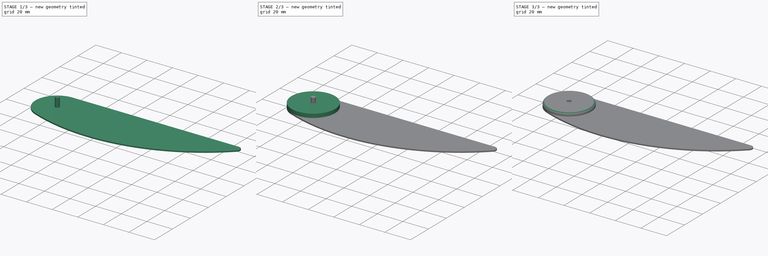
[diagram: build sequence overview — one tinted view per stage of 3, left to right]
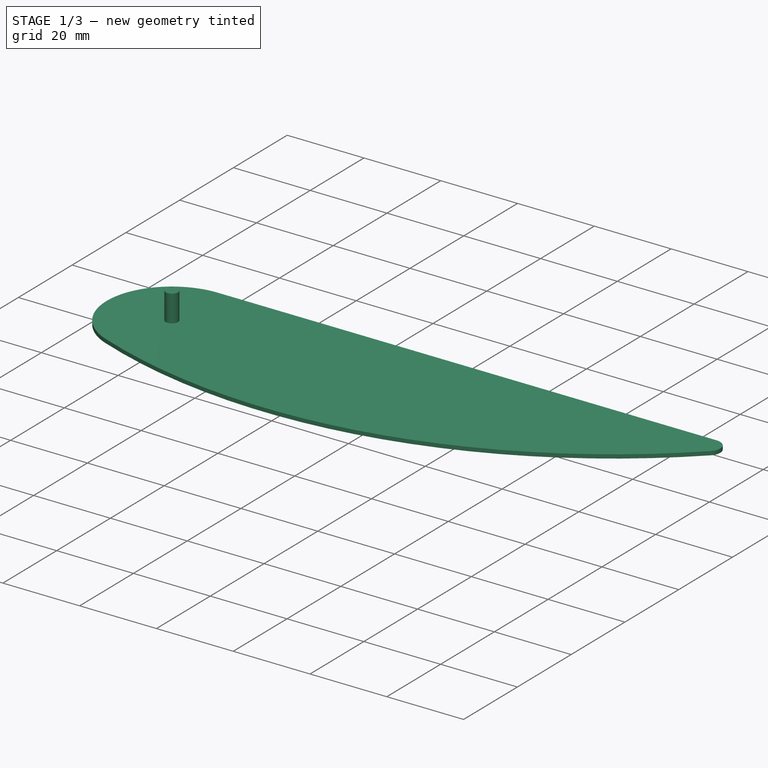
[diagram: stage 1 of 3 — iso view after this stage's code; geometry added in this stage tinted green]
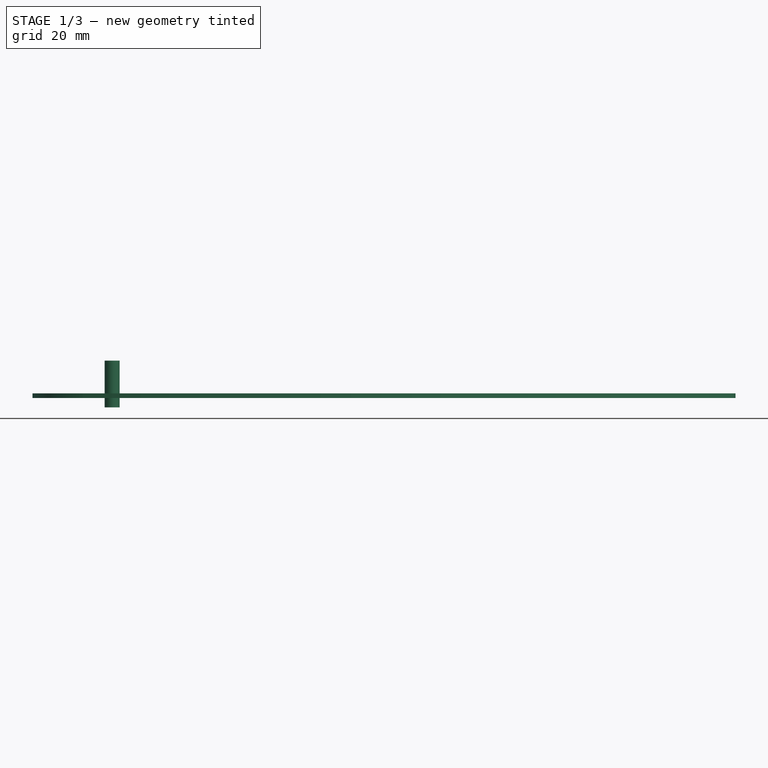
[diagram: stage 1 of 3 — front view after this stage's code; geometry added in this stage tinted green]
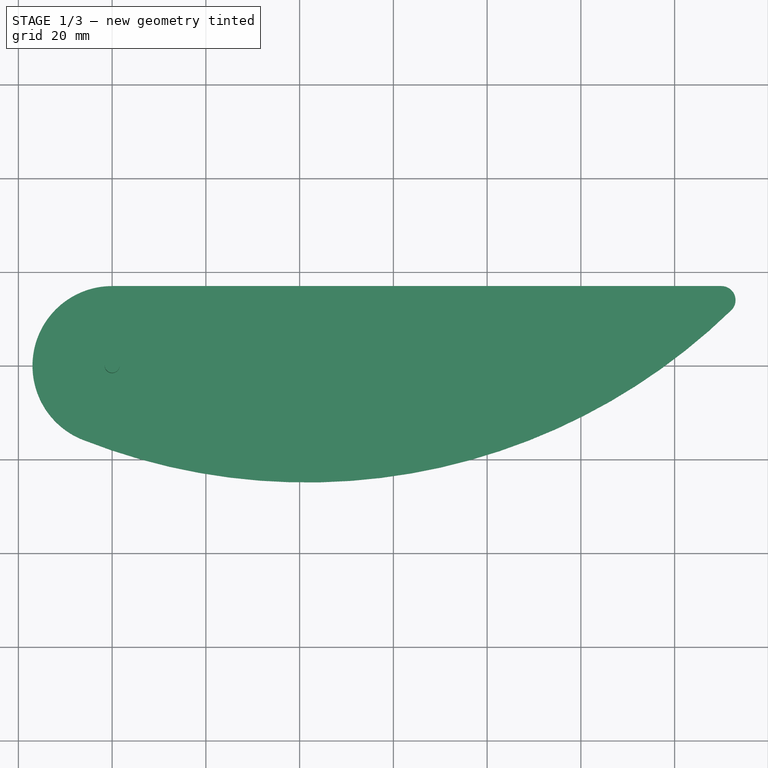
[diagram: stage 1 of 3 — top view after this stage's code; geometry added in this stage tinted green]
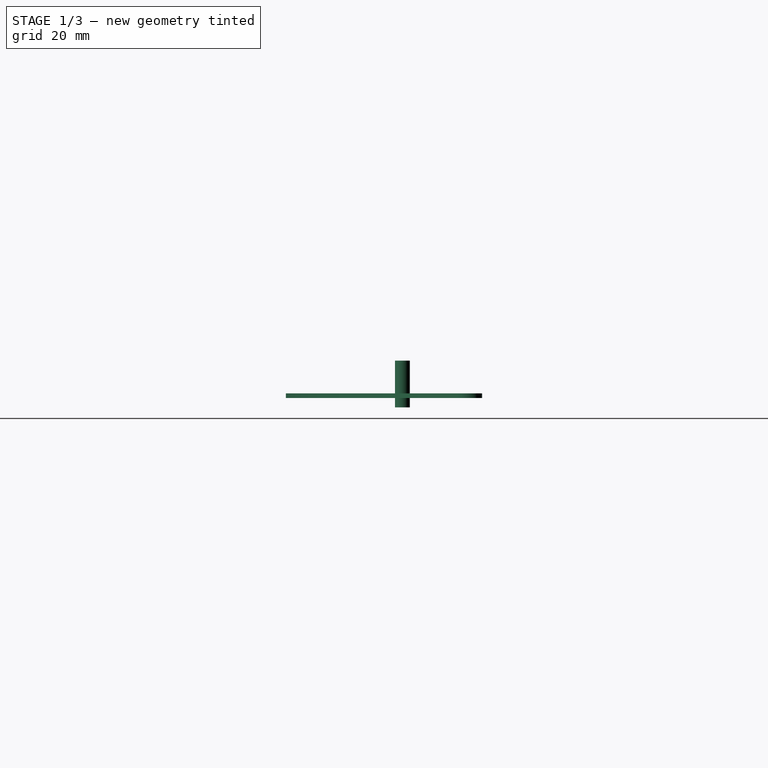
[diagram: stage 1 of 3 — right view after this stage's code; geometry added in this stage tinted green]
FCSTD DOCUMENT  (FreeCAD 0.17R13541 (Git))
Label: Guillotina
License: CreativeCommons Attribution
LicenseURL: http://creativecommons.org/licenses/by/4.0/
objects: Part::Feature×3, Sketcher::SketchObject×2, PartDesign::Pad×2, Part::Cut×2, PartDesign::Body×1, Part::Fillet×1, Part::Cylinder×1, App::DocumentObjectGroup×1
note: 14 computed .brp shape members not serialized (recipe doc carries the construction recipe); baked Part::Feature solids carry a one-line shape summary decoded from their .brp

FEATURE [Sketcher::SketchObject] Sketch  label="Sketch cuchillo"
  MapMode = 5
  Support = -> [XY_Plane]
  sketch-geometry (4):
    g0: ArcOfCircle CenterX=0 CenterY=0 CenterZ=0 NormalX=0 NormalY=0 NormalZ=1 AngleXU=0 Radius=17 StartAngle=1.5708 EndAngle=4.33621
    g1: ArcOfCircle CenterX=130 CenterY=14 CenterZ=0 NormalX=0 NormalY=0 NormalZ=1 AngleXU=0 Radius=3 StartAngle=5.48325 EndAngle=7.85398
    g2: LineSegment StartX=0 StartY=17 StartZ=0 EndX=130 EndY=17 EndZ=0
    g3: ArcOfCircle CenterX=41.5125 CenterY=105.099 CenterZ=0 NormalX=0 NormalY=0 NormalZ=1 AngleXU=0 Radius=130 StartAngle=4.33621 EndAngle=5.48325
  constraints (10):
    c: Coincident(g0,g-1)
    c: Horizontal(g2)
    c: Tangent(g0,g2) = 1.5708
    c: Tangent(g1,g2) = 1.5708
    c: DistanceX(g2,g2) = 130
    c: Radius(g1) = 3
    c: Tangent(g3,g0) = -1.5708
    c: Tangent(g3,g1) = -1.5708
    c: Radius(g0) = 17
    c: Radius(g3) = 130
FEATURE [PartDesign::Pad] Pad  label="Pad cuchillo"
  Length = 1
  Length2 = 100
  Profile = -> Sketch
  Type = 0
FEATURE [Part::Feature] Fillet001  label="Soporte 4 palas servo HD1160A"
  shape: bbox 26 x 26 x 5.52 mm, 39 faces (baked)
FEATURE [Part::Cylinder] Cylinder  label="Hueco para tornillo servo"
  Angle = 360
  AttacherType = Attacher::AttachEngine3D
  Height = 10
  Placement = pos=(0,0,-2) rot=(0,0,1;0rad)
  Radius = 1.6
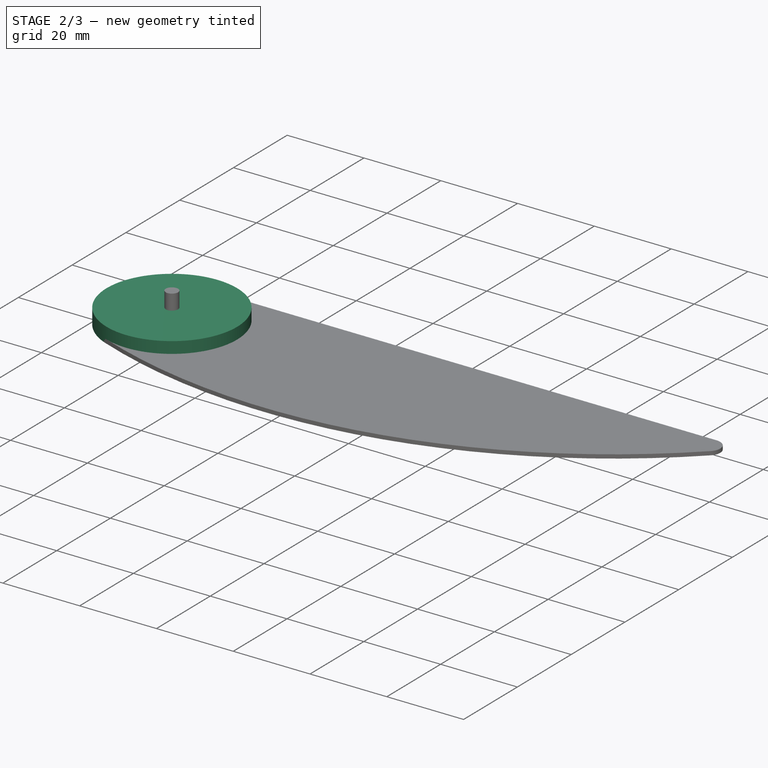
[diagram: stage 2 of 3 — iso view after this stage's code; geometry added in this stage tinted green]
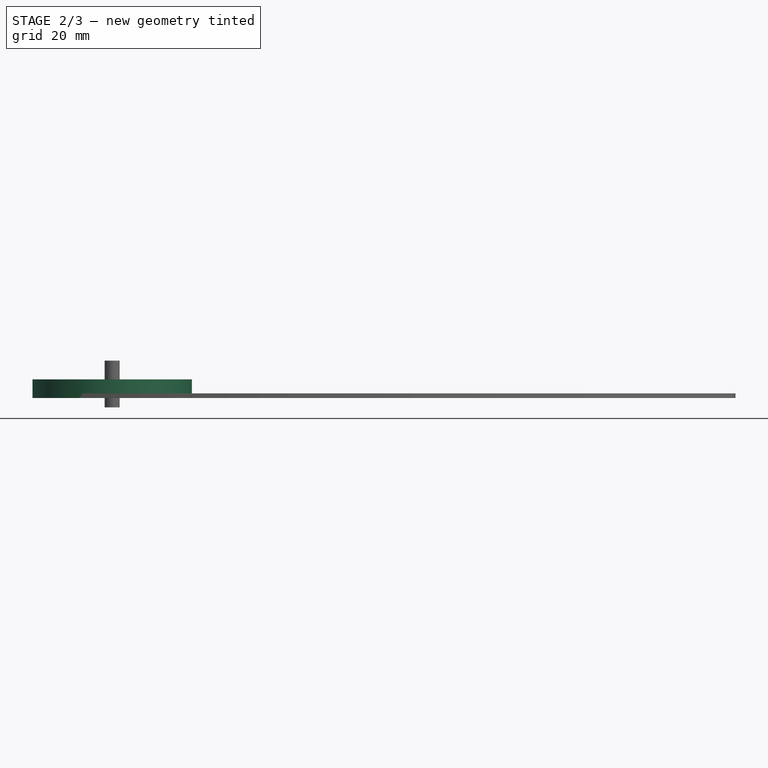
[diagram: stage 2 of 3 — front view after this stage's code; geometry added in this stage tinted green]
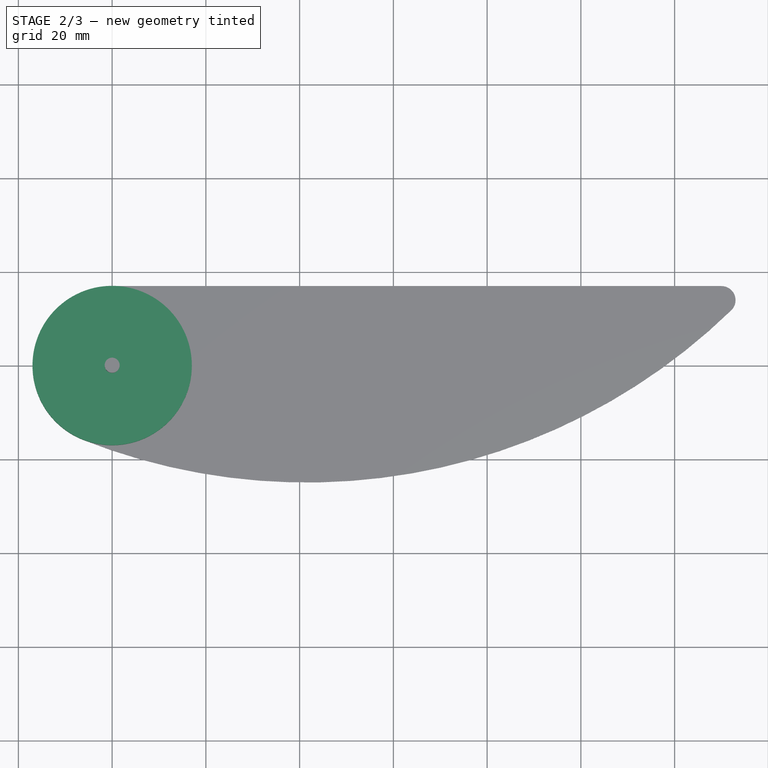
[diagram: stage 2 of 3 — top view after this stage's code; geometry added in this stage tinted green]
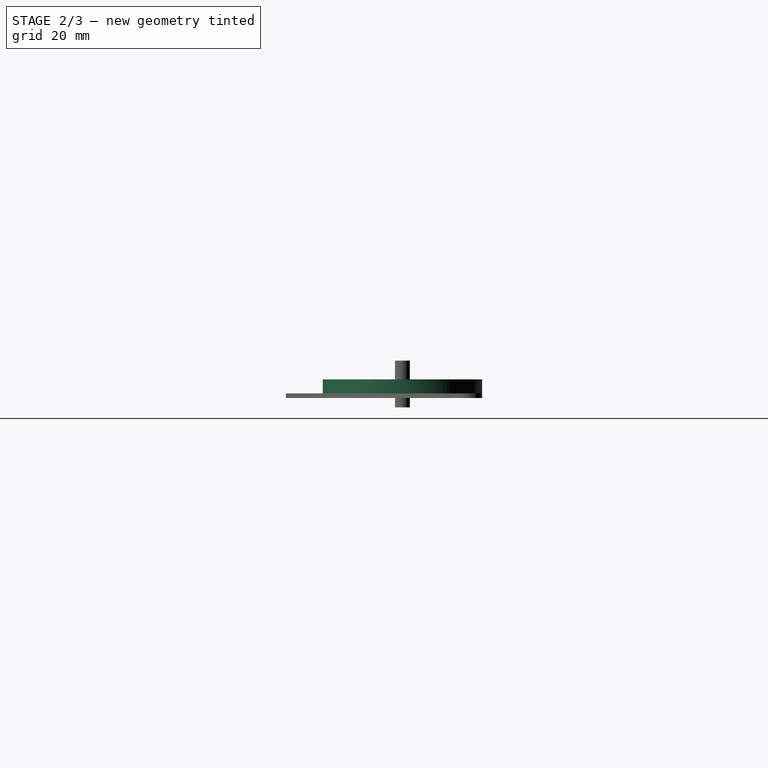
[diagram: stage 2 of 3 — right view after this stage's code; geometry added in this stage tinted green]
FEATURE [Sketcher::SketchObject] Sketch001  label="Sketch soporte servo"
  MapMode = 5
  Placement = pos=(0,0,1) rot=(0,0,1;0rad)
  Support = -> [Pad]
  sketch-geometry (1):
    g0: Circle CenterX=0 CenterY=0 CenterZ=0 NormalX=0 NormalY=0 NormalZ=1 AngleXU=0 Radius=17
  constraints (2):
    c: Coincident(g0,g-1)
    c: Radius(g0) = 17
FEATURE [PartDesign::Pad] Pad001  label="Pad empuñadura"
  BaseFeature = -> Pad
  Length = 3
  Length2 = 100
  Profile = -> Sketch001
  Type = 0
FEATURE [PartDesign::Body] Body  label="Body 3D"
  Group = -> [Sketch,Pad,Sketch001,Pad001]
  Origin = -> Origin
  Tip = -> Pad001
FEATURE [Part::Feature] Fusion003001  label="Fusion soporte 4 palas para hacer huecos"
  shape: bbox 26.5 x 26.5 x 2.52 mm, 20 faces (baked)
FEATURE [Part::Cut] Cut  label="Recorte cuchillo con hueco para soporte 4 palas"
  Base = -> Pad001
  Refine = true
  Tool = -> Fusion003001
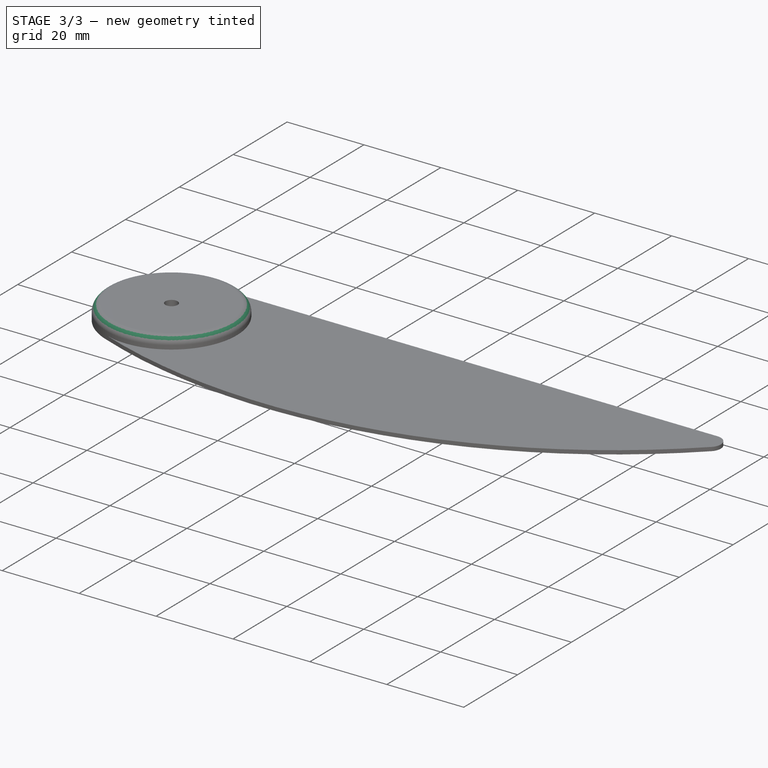
[diagram: stage 3 of 3 — iso view after this stage's code; geometry added in this stage tinted green]
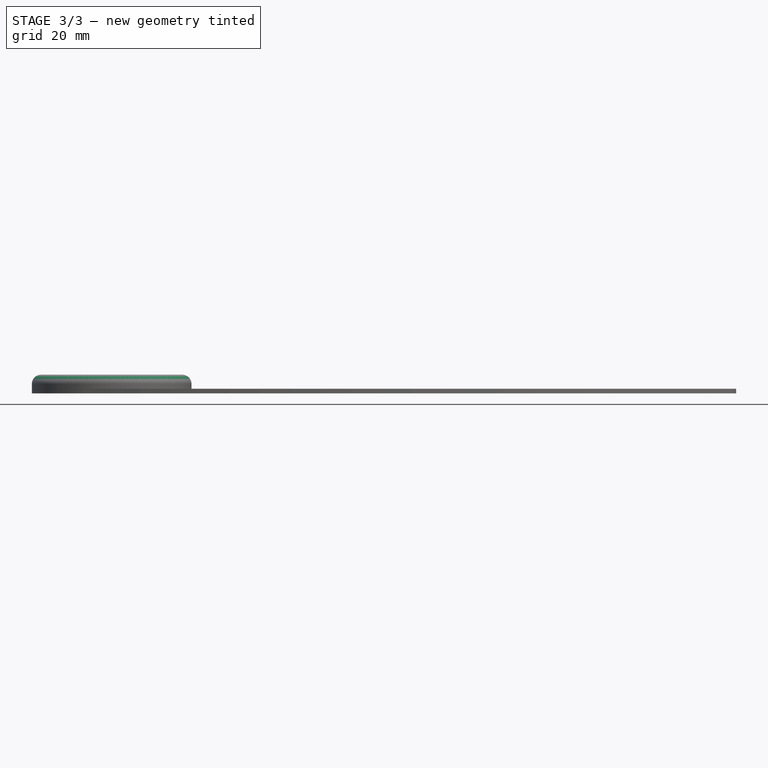
[diagram: stage 3 of 3 — front view after this stage's code; geometry added in this stage tinted green]
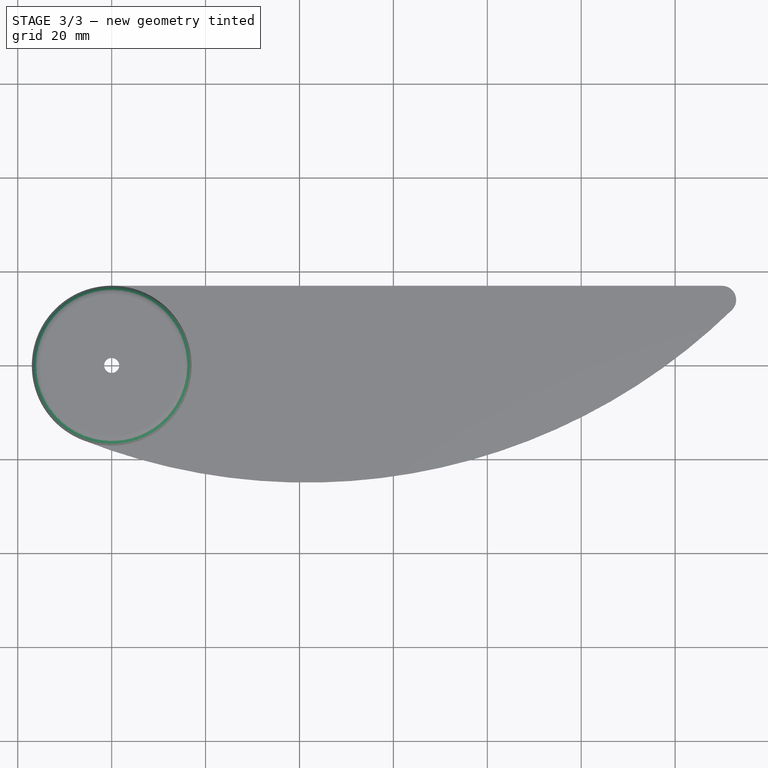
[diagram: stage 3 of 3 — top view after this stage's code; geometry added in this stage tinted green]
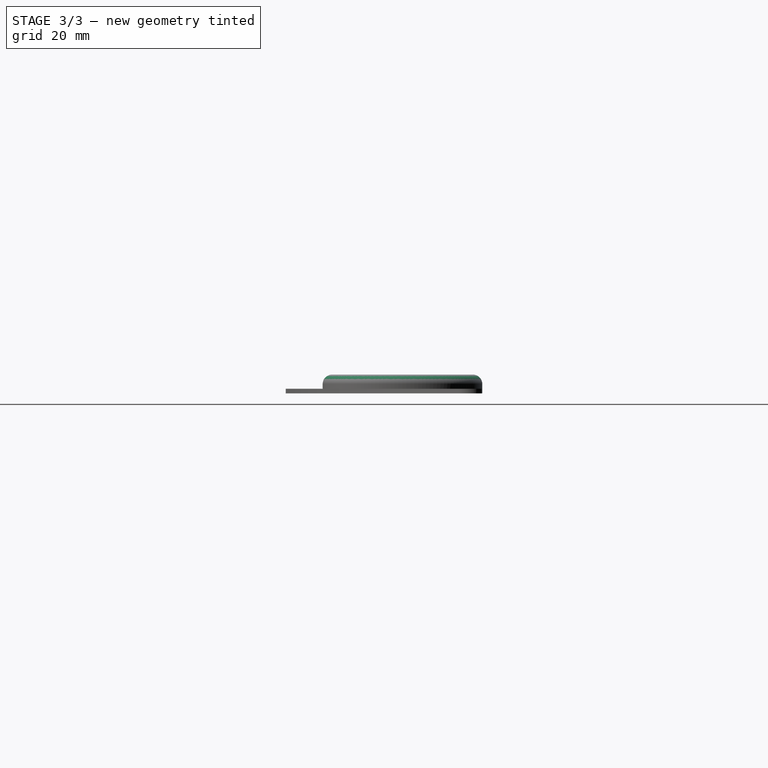
[diagram: stage 3 of 3 — right view after this stage's code; geometry added in this stage tinted green]
FEATURE [Part::Fillet] Fillet  label="Guillotina con radios"
  Base = -> Cut
  Edges = 1 edges r=2: [Edge66]
FEATURE [Part::Cut] Cut001  label="Cuchillo guillotina master"
  Base = -> Fillet
  Refine = true
  Tool = -> Cylinder
FEATURE [Part::Feature] Cut001001  label="Cuchillo guillotina"
  shape: bbox 151.4 x 43.3 x 4 mm, 28 faces (baked)
FEATURE [App::DocumentObjectGroup] Grupo  label="Copias simples"
  Group = -> [Cut001001,Fillet001]
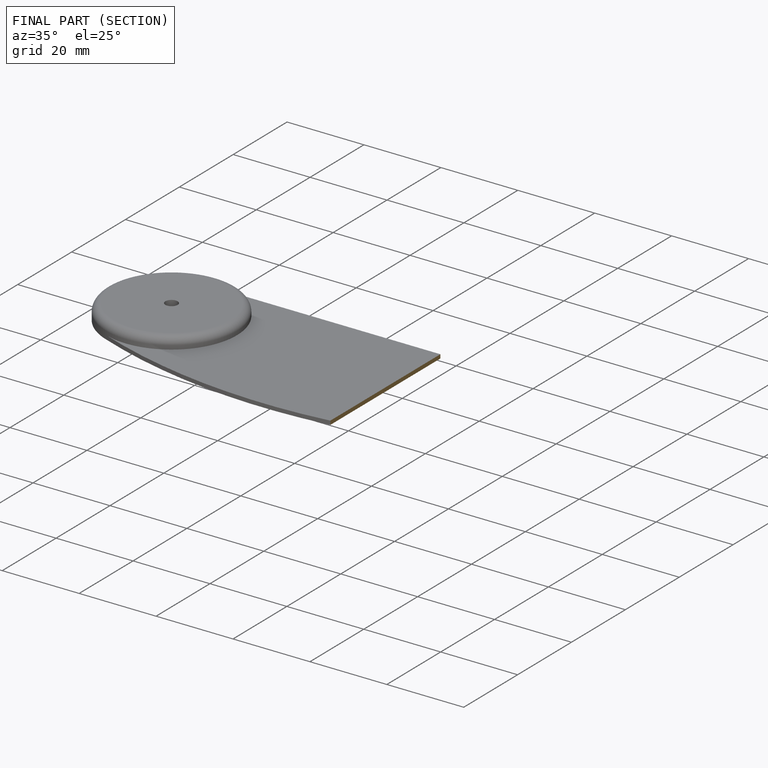
[diagram: finished part — half-section view (interior)]
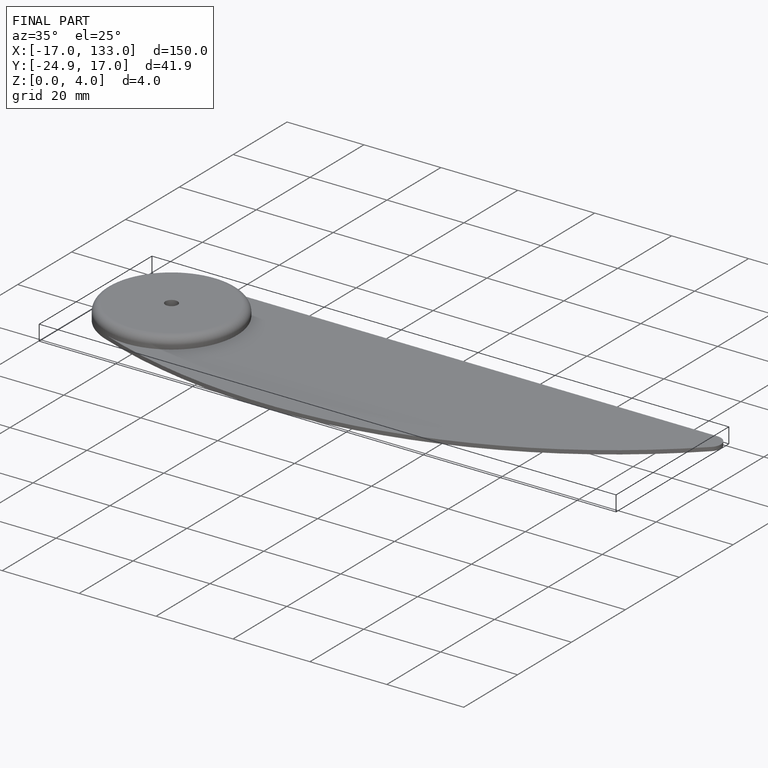
[diagram: finished part — iso view with bounding-box wireframe]
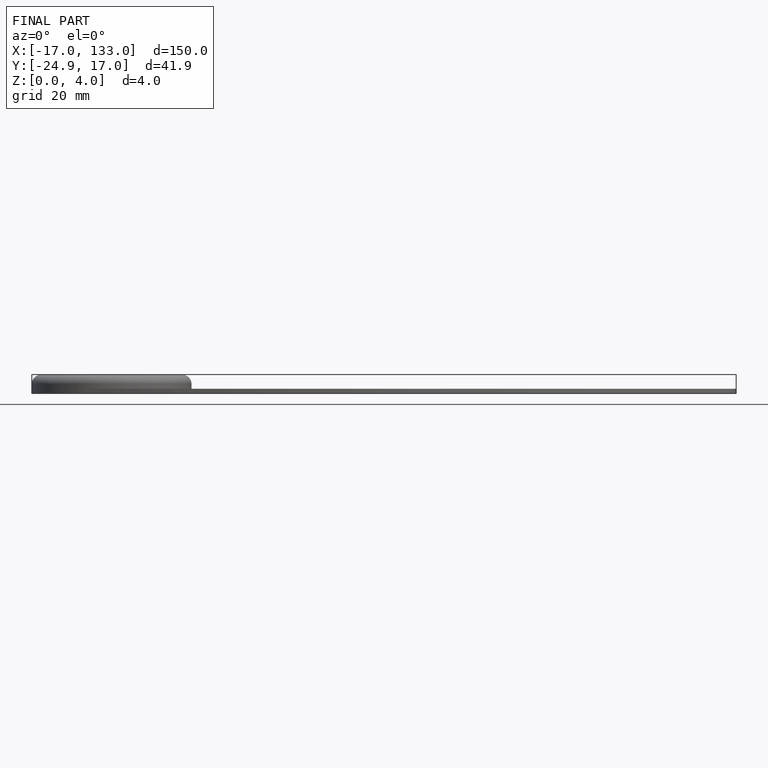
[diagram: finished part — front view with bounding-box wireframe]
